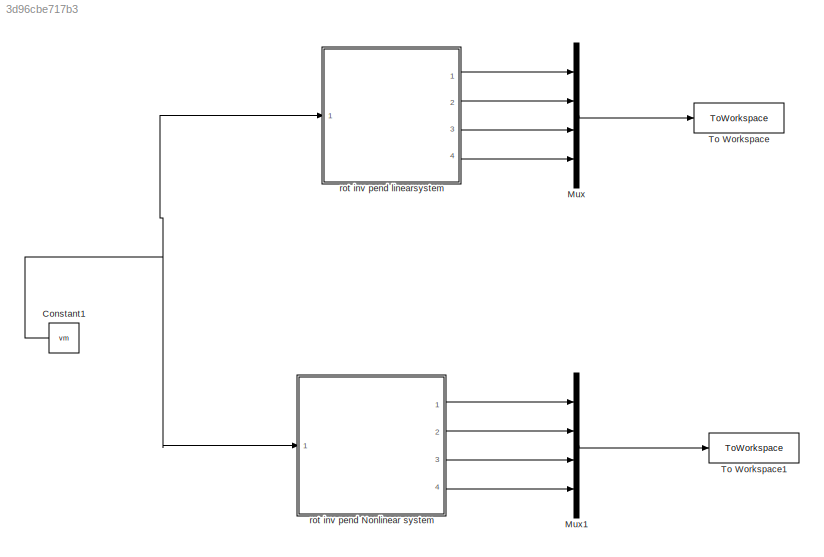
MODEL slx_3d96cbe717b3
KIND model
CONFIG AbsTol = auto
CONFIG EnableMultiTasking = off
CONFIG FixedStep = auto
CONFIG MaxStep = auto
CONFIG MinStep = auto
CONFIG RelTol = 1e-3
CONFIG SampleTimeConstraint = Unconstrained
CONFIG Solver = VariableStepAuto
CONFIG SolverName = VariableStepAuto
CONFIG StartTime = 0.0
CONFIG StopTime = 10.0
BLOCK [Constant] Constant1
  Value = vm
BLOCK [Mux] Mux
  DisplayOption = bar
  Ports = [4, 1]
BLOCK [Mux] Mux1
  DisplayOption = bar
  Ports = [4, 1]
BLOCK [ToWorkspace] To Workspace
  FixptAsFi = on
  MaxDataPoints = inf
  Ports = [1]
  SampleTime = -1
  SaveFormat = Timeseries
  VariableName = linrip
BLOCK [ToWorkspace] To Workspace1
  FixptAsFi = on
  MaxDataPoints = inf
  Ports = [1]
  SampleTime = -1
  SaveFormat = Timeseries
  VariableName = nonlinrip
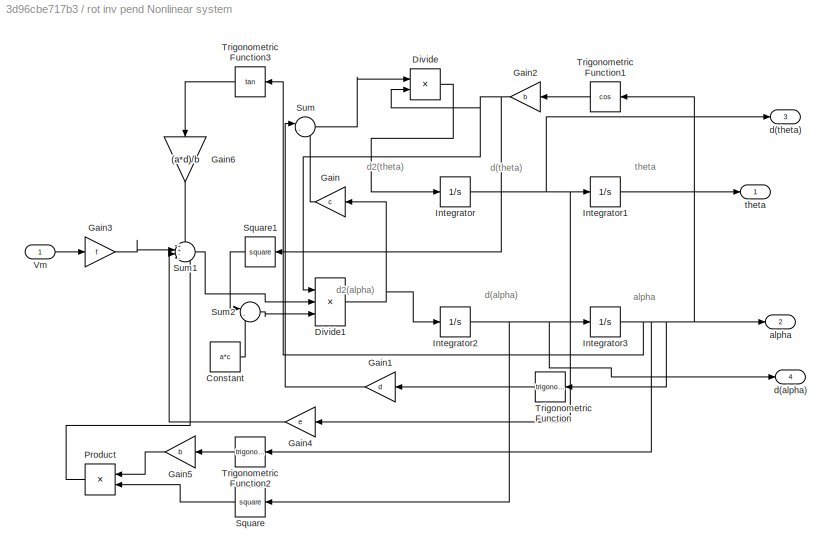
BLOCK [SubSystem] rot inv pend Nonlinear system
  Ports = [1, 4]
  RequestExecContextInheritance = off
BLOCK [Constant] rot inv pend Nonlinear system/Constant
  Value = a*c
BLOCK [Product] rot inv pend Nonlinear system/Divide
  InputSameDT = off
  Inputs = */
  OutDataTypeStr = Inherit: Inherit via internal rule
  Ports = [2, 1]
  RndMeth = Floor
  SaturateOnIntegerOverflow = off
BLOCK [Product] rot inv pend Nonlinear system/Divide1
  InputSameDT = off
  Inputs = **/
  OutDataTypeStr = Inherit: Inherit via internal rule
  Ports = [3, 1]
  RndMeth = Floor
  SaturateOnIntegerOverflow = off
BLOCK [Gain] rot inv pend Nonlinear system/Gain
  Gain = c
  OutDataTypeStr = Inherit: Inherit via internal rule
  ParamDataTypeStr = Inherit: Inherit via internal rule
  SaturateOnIntegerOverflow = off
BLOCK [Gain] rot inv pend Nonlinear system/Gain1
  Gain = d
  OutDataTypeStr = Inherit: Inherit via internal rule
  ParamDataTypeStr = Inherit: Inherit via internal rule
  SaturateOnIntegerOverflow = off
BLOCK [Gain] rot inv pend Nonlinear system/Gain2
  Gain = b
  OutDataTypeStr = Inherit: Inherit via internal rule
  ParamDataTypeStr = Inherit: Inherit via internal rule
  SaturateOnIntegerOverflow = off
BLOCK [Gain] rot inv pend Nonlinear system/Gain3
  Gain = f
  OutDataTypeStr = Inherit: Inherit via internal rule
  ParamDataTypeStr = Inherit: Inherit via internal rule
  SaturateOnIntegerOverflow = off
BLOCK [Gain] rot inv pend Nonlinear system/Gain4
  Gain = e
  OutDataTypeStr = Inherit: Inherit via internal rule
  ParamDataTypeStr = Inherit: Inherit via internal rule
  SaturateOnIntegerOverflow = off
BLOCK [Gain] rot inv pend Nonlinear system/Gain5
  Gain = b
  OutDataTypeStr = Inherit: Inherit via internal rule
  ParamDataTypeStr = Inherit: Inherit via internal rule
  SaturateOnIntegerOverflow = off
BLOCK [Gain] rot inv pend Nonlinear system/Gain6
  Gain = (a*d)/b
  OutDataTypeStr = Inherit: Inherit via internal rule
  ParamDataTypeStr = Inherit: Inherit via internal rule
  SaturateOnIntegerOverflow = off
BLOCK [Integrator] rot inv pend Nonlinear system/Integrator
  Ports = [1, 1]
BLOCK [Integrator] rot inv pend Nonlinear system/Integrator1
  Ports = [1, 1]
BLOCK [Integrator] rot inv pend Nonlinear system/Integrator2
  Ports = [1, 1]
BLOCK [Integrator] rot inv pend Nonlinear system/Integrator3
  Ports = [1, 1]
BLOCK [Product] rot inv pend Nonlinear system/Product
  InputSameDT = off
  OutDataTypeStr = Inherit: Inherit via internal rule
  Ports = [2, 1]
  RndMeth = Floor
  SaturateOnIntegerOverflow = off
BLOCK [Math] rot inv pend Nonlinear system/Square
  Operator = square
  Ports = [1, 1]
  SignedPower = off
BLOCK [Math] rot inv pend Nonlinear system/Square1
  Operator = square
  Ports = [1, 1]
  SignedPower = off
BLOCK [Sum] rot inv pend Nonlinear system/Sum
  IconShape = round
  InputSameDT = off
  Inputs = |-+
  OutDataTypeStr = Inherit: Inherit via internal rule
  Ports = [2, 1]
  SaturateOnIntegerOverflow = off
BLOCK [Sum] rot inv pend Nonlinear system/Sum1
  IconShape = round
  InputSameDT = off
  Inputs = ++--
  OutDataTypeStr = Inherit: Inherit via internal rule
  Ports = [4, 1]
  SaturateOnIntegerOverflow = off
BLOCK [Sum] rot inv pend Nonlinear system/Sum2
  IconShape = round
  InputSameDT = off
  Inputs = |-+
  OutDataTypeStr = Inherit: Inherit via internal rule
  Ports = [2, 1]
  SaturateOnIntegerOverflow = off
BLOCK [Trigonometry] rot inv pend Nonlinear system/Trigonometric Function
  Ports = [1, 1]
BLOCK [Trigonometry] rot inv pend Nonlinear system/Trigonometric Function1
  Operator = cos
  Ports = [1, 1]
BLOCK [Trigonometry] rot inv pend Nonlinear system/Trigonometric Function2
  Ports = [1, 1]
BLOCK [Trigonometry] rot inv pend Nonlinear system/Trigonometric Function3
  Operator = tan
  Ports = [1, 1]
BLOCK [Inport] rot inv pend Nonlinear system/Vm
  IconDisplay = Port number
BLOCK [Outport] rot inv pend Nonlinear system/alpha
  IconDisplay = Port number
  Port = 2
BLOCK [Outport] rot inv pend Nonlinear system/d(alpha)
  IconDisplay = Port number
  Port = 4
BLOCK [Outport] rot inv pend Nonlinear system/d(theta)
  IconDisplay = Port number
  Port = 3
BLOCK [Outport] rot inv pend Nonlinear system/theta
  IconDisplay = Port number
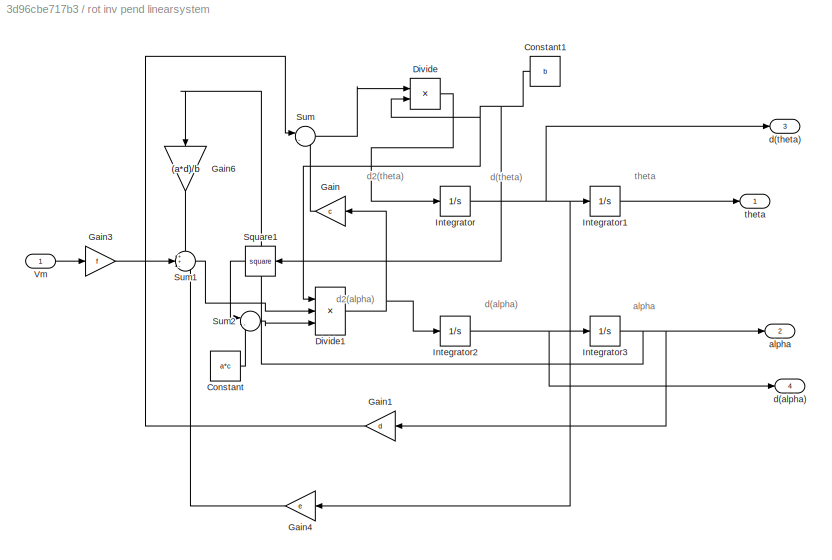
BLOCK [SubSystem] rot inv pend linearsystem
  Ports = [1, 4]
  RequestExecContextInheritance = off
BLOCK [Constant] rot inv pend linearsystem/Constant
  Value = a*c
BLOCK [Constant] rot inv pend linearsystem/Constant1
  Value = b
BLOCK [Product] rot inv pend linearsystem/Divide
  InputSameDT = off
  Inputs = */
  OutDataTypeStr = Inherit: Inherit via internal rule
  Ports = [2, 1]
  RndMeth = Floor
  SaturateOnIntegerOverflow = off
BLOCK [Product] rot inv pend linearsystem/Divide1
  InputSameDT = off
  Inputs = **/
  OutDataTypeStr = Inherit: Inherit via internal rule
  Ports = [3, 1]
  RndMeth = Floor
  SaturateOnIntegerOverflow = off
BLOCK [Gain] rot inv pend linearsystem/Gain
  Gain = c
  OutDataTypeStr = Inherit: Inherit via internal rule
  ParamDataTypeStr = Inherit: Inherit via internal rule
  SaturateOnIntegerOverflow = off
BLOCK [Gain] rot inv pend linearsystem/Gain1
  Gain = d
  OutDataTypeStr = Inherit: Inherit via internal rule
  ParamDataTypeStr = Inherit: Inherit via internal rule
  SaturateOnIntegerOverflow = off
BLOCK [Gain] rot inv pend linearsystem/Gain3
  Gain = f
  OutDataTypeStr = Inherit: Inherit via internal rule
  ParamDataTypeStr = Inherit: Inherit via internal rule
  SaturateOnIntegerOverflow = off
BLOCK [Gain] rot inv pend linearsystem/Gain4
  Gain = e
  OutDataTypeStr = Inherit: Inherit via internal rule
  ParamDataTypeStr = Inherit: Inherit via internal rule
  SaturateOnIntegerOverflow = off
BLOCK [Gain] rot inv pend linearsystem/Gain6
  Gain = (a*d)/b
  OutDataTypeStr = Inherit: Inherit via internal rule
  ParamDataTypeStr = Inherit: Inherit via internal rule
  SaturateOnIntegerOverflow = off
BLOCK [Integrator] rot inv pend linearsystem/Integrator
  Ports = [1, 1]
BLOCK [Integrator] rot inv pend linearsystem/Integrator1
  Ports = [1, 1]
BLOCK [Integrator] rot inv pend linearsystem/Integrator2
  Ports = [1, 1]
BLOCK [Integrator] rot inv pend linearsystem/Integrator3
  Ports = [1, 1]
BLOCK [Math] rot inv pend linearsystem/Square1
  Operator = square
  Ports = [1, 1]
  SignedPower = off
BLOCK [Sum] rot inv pend linearsystem/Sum
  IconShape = round
  InputSameDT = off
  Inputs = |-+
  OutDataTypeStr = Inherit: Inherit via internal rule
  Ports = [2, 1]
  SaturateOnIntegerOverflow = off
BLOCK [Sum] rot inv pend linearsystem/Sum1
  IconShape = round
  InputSameDT = off
  Inputs = ++-
  OutDataTypeStr = Inherit: Inherit via internal rule
  Ports = [3, 1]
  SaturateOnIntegerOverflow = off
BLOCK [Sum] rot inv pend linearsystem/Sum2
  IconShape = round
  InputSameDT = off
  Inputs = |-+
  OutDataTypeStr = Inherit: Inherit via internal rule
  Ports = [2, 1]
  SaturateOnIntegerOverflow = off
BLOCK [Inport] rot inv pend linearsystem/Vm
  IconDisplay = Port number
BLOCK [Outport] rot inv pend linearsystem/alpha
  IconDisplay = Port number
  Port = 2
BLOCK [Outport] rot inv pend linearsystem/d(alpha)
  IconDisplay = Port number
  Port = 4
BLOCK [Outport] rot inv pend linearsystem/d(theta)
  IconDisplay = Port number
  Port = 3
BLOCK [Outport] rot inv pend linearsystem/theta
  IconDisplay = Port number
ANNOTATION rot inv pend Nonlinear system: alpha
ANNOTATION rot inv pend Nonlinear system: d(alpha)
ANNOTATION rot inv pend Nonlinear system: d(theta)
ANNOTATION rot inv pend Nonlinear system: d2(alpha)
ANNOTATION rot inv pend Nonlinear system: d2(theta)
ANNOTATION rot inv pend Nonlinear system: theta
ANNOTATION rot inv pend linearsystem: alpha
ANNOTATION rot inv pend linearsystem: d(alpha)
ANNOTATION rot inv pend linearsystem: d(theta)
ANNOTATION rot inv pend linearsystem: d2(alpha)
ANNOTATION rot inv pend linearsystem: d2(theta)
ANNOTATION rot inv pend linearsystem: theta
NET Constant1:1 -> rot inv pend Nonlinear system:1, rot inv pend linearsystem:1
LINE Mux1:1 -> To Workspace1:1
LINE Mux:1 -> To Workspace:1
LINE rot inv pend Nonlinear system/Constant:1 -> rot inv pend Nonlinear system/Sum2:2
NET rot inv pend Nonlinear system/Divide1:1 -> rot inv pend Nonlinear system/Gain:1, rot inv pend Nonlinear system/Integrator2:1
LINE rot inv pend Nonlinear system/Divide:1 -> rot inv pend Nonlinear system/Integrator:1
LINE rot inv pend Nonlinear system/Gain1:1 -> rot inv pend Nonlinear system/Sum:1
NET rot inv pend Nonlinear system/Gain2:1 -> rot inv pend Nonlinear system/Divide1:1, rot inv pend Nonlinear system/Divide:2, rot inv pend Nonlinear system/Square1:1
LINE rot inv pend Nonlinear system/Gain3:1 -> rot inv pend Nonlinear system/Sum1:2
LINE rot inv pend Nonlinear system/Gain4:1 -> rot inv pend Nonlinear system/Sum1:3
LINE rot inv pend Nonlinear system/Gain5:1 -> rot inv pend Nonlinear system/Product:1
LINE rot inv pend Nonlinear system/Gain6:1 -> rot inv pend Nonlinear system/Sum1:1
LINE rot inv pend Nonlinear system/Gain:1 -> rot inv pend Nonlinear system/Sum:2
LINE rot inv pend Nonlinear system/Integrator1:1 -> rot inv pend Nonlinear system/theta:1
NET rot inv pend Nonlinear system/Integrator2:1 -> rot inv pend Nonlinear system/Integrator3:1, rot inv pend Nonlinear system/Square:1, rot inv pend Nonlinear system/d(alpha):1
NET rot inv pend Nonlinear system/Integrator3:1 -> rot inv pend Nonlinear system/Trigonometric Function1:1, rot inv pend Nonlinear system/Trigonometric Function2:1, rot inv pend Nonlinear system/Trigonometric Function3:1, rot inv pend Nonlinear system/Trigonometric Function:1, rot inv pend Nonlinear system/alpha:1
NET rot inv pend Nonlinear system/Integrator:1 -> rot inv pend Nonlinear system/Gain4:1, rot inv pend Nonlinear system/Integrator1:1, rot inv pend Nonlinear system/d(theta):1
LINE rot inv pend Nonlinear system/Product:1 -> rot inv pend Nonlinear system/Sum1:4
LINE rot inv pend Nonlinear system/Square1:1 -> rot inv pend Nonlinear system/Sum2:1
LINE rot inv pend Nonlinear system/Square:1 -> rot inv pend Nonlinear system/Product:2
LINE rot inv pend Nonlinear system/Sum1:1 -> rot inv pend Nonlinear system/Divide1:2
LINE rot inv pend Nonlinear system/Sum2:1 -> rot inv pend Nonlinear system/Divide1:3
LINE rot inv pend Nonlinear system/Sum:1 -> rot inv pend Nonlinear system/Divide:1
LINE rot inv pend Nonlinear system/Trigonometric Function1:1 -> rot inv pend Nonlinear system/Gain2:1
LINE rot inv pend Nonlinear system/Trigonometric Function2:1 -> rot inv pend Nonlinear system/Gain5:1
LINE rot inv pend Nonlinear system/Trigonometric Function3:1 -> rot inv pend Nonlinear system/Gain6:1
LINE rot inv pend Nonlinear system/Trigonometric Function:1 -> rot inv pend Nonlinear system/Gain1:1
LINE rot inv pend Nonlinear system/Vm:1 -> rot inv pend Nonlinear system/Gain3:1
LINE rot inv pend Nonlinear system:1 -> Mux1:1
LINE rot inv pend Nonlinear system:2 -> Mux1:2
LINE rot inv pend Nonlinear system:3 -> Mux1:3
LINE rot inv pend Nonlinear system:4 -> Mux1:4
NET rot inv pend linearsystem/Constant1:1 -> rot inv pend linearsystem/Divide1:1, rot inv pend linearsystem/Divide:2, rot inv pend linearsystem/Square1:1
LINE rot inv pend linearsystem/Constant:1 -> rot inv pend linearsystem/Sum2:2
NET rot inv pend linearsystem/Divide1:1 -> rot inv pend linearsystem/Gain:1, rot inv pend linearsystem/Integrator2:1
LINE rot inv pend linearsystem/Divide:1 -> rot inv pend linearsystem/Integrator:1
LINE rot inv pend linearsystem/Gain1:1 -> rot inv pend linearsystem/Sum:1
LINE rot inv pend linearsystem/Gain3:1 -> rot inv pend linearsystem/Sum1:2
LINE rot inv pend linearsystem/Gain4:1 -> rot inv pend linearsystem/Sum1:3
LINE rot inv pend linearsystem/Gain6:1 -> rot inv pend linearsystem/Sum1:1
LINE rot inv pend linearsystem/Gain:1 -> rot inv pend linearsystem/Sum:2
LINE rot inv pend linearsystem/Integrator1:1 -> rot inv pend linearsystem/theta:1
NET rot inv pend linearsystem/Integrator2:1 -> rot inv pend linearsystem/Integrator3:1, rot inv pend linearsystem/d(alpha):1
NET rot inv pend linearsystem/Integrator3:1 -> rot inv pend linearsystem/Gain1:1, rot inv pend linearsystem/Gain6:1, rot inv pend linearsystem/alpha:1
NET rot inv pend linearsystem/Integrator:1 -> rot inv pend linearsystem/Gain4:1, rot inv pend linearsystem/Integrator1:1, rot inv pend linearsystem/d(theta):1
LINE rot inv pend linearsystem/Square1:1 -> rot inv pend linearsystem/Sum2:1
LINE rot inv pend linearsystem/Sum1:1 -> rot inv pend linearsystem/Divide1:2
LINE rot inv pend linearsystem/Sum2:1 -> rot inv pend linearsystem/Divide1:3
LINE rot inv pend linearsystem/Sum:1 -> rot inv pend linearsystem/Divide:1
LINE rot inv pend linearsystem/Vm:1 -> rot inv pend linearsystem/Gain3:1
LINE rot inv pend linearsystem:1 -> Mux:1
LINE rot inv pend linearsystem:2 -> Mux:2
LINE rot inv pend linearsystem:3 -> Mux:3
LINE rot inv pend linearsystem:4 -> Mux:4
note: NET lines group one-source signal fan-out (src -> all destinations, sorted); 1:1 wires keep LINE
